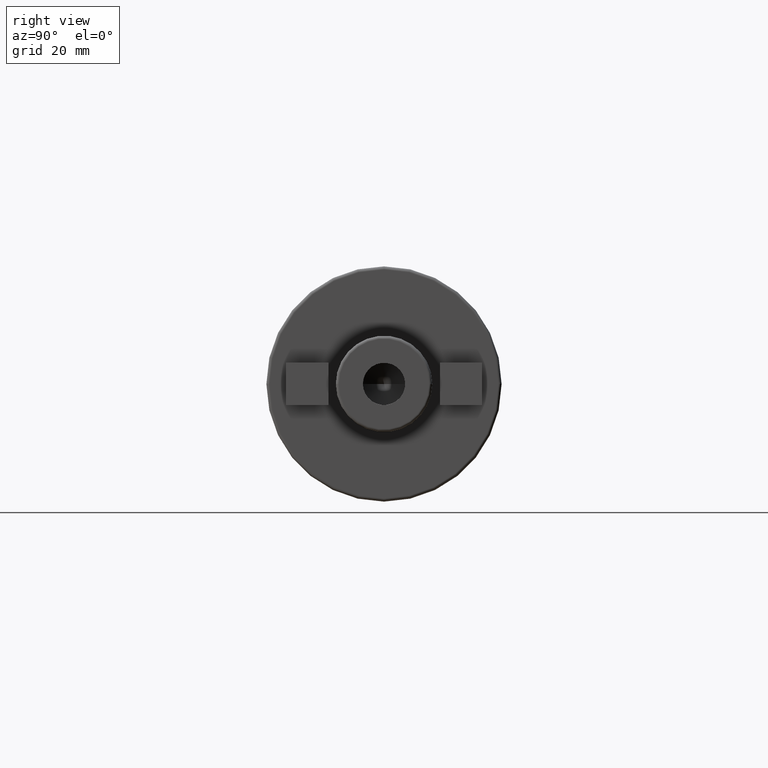
[diagram: clean part render]
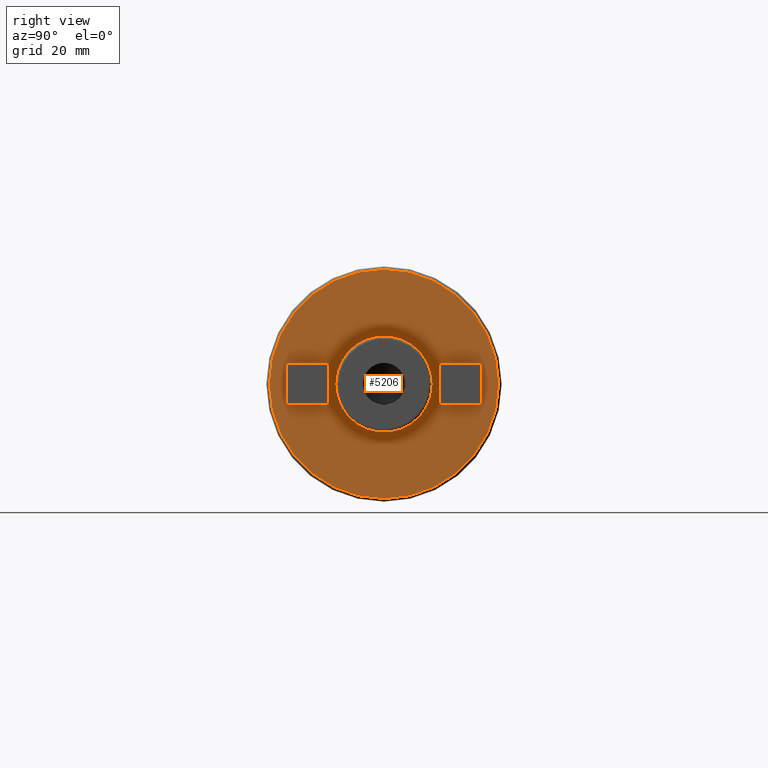
[diagram: same view with one face highlighted and labeled with its STEP entity id]
A machine part, right view. The second image highlights one B-rep face of the part: STEP entity #5206.
In plain terms, the highlighted planar face has unit normal (1, 0, 0).
Its self-contained STEP definition (entity closure, byte-faithful):
#1569=CARTESIAN_POINT('',(1.6E2,0.E0,0.E0));
#1570=DIRECTION('',(1.E0,0.E0,0.E0));
#1571=DIRECTION('',(0.E0,1.E0,0.E0));
#1572=AXIS2_PLACEMENT_3D('',#1569,#1570,#1571);
#1574=CARTESIAN_POINT('',(1.6E2,0.E0,0.E0));
#1575=DIRECTION('',(-1.E0,0.E0,0.E0));
#1576=DIRECTION('',(0.E0,1.E0,0.E0));
#1577=AXIS2_PLACEMENT_3D('',#1574,#1575,#1576);
#1579=CARTESIAN_POINT('',(1.6E2,0.E0,0.E0));
#1580=DIRECTION('',(-1.E0,0.E0,0.E0));
#1581=DIRECTION('',(0.E0,1.E0,0.E0));
#1582=AXIS2_PLACEMENT_3D('',#1579,#1580,#1581);
#1584=CARTESIAN_POINT('',(1.6E2,0.E0,0.E0));
#1585=DIRECTION('',(-1.E0,0.E0,0.E0));
#1586=DIRECTION('',(0.E0,-1.E0,0.E0));
#1587=AXIS2_PLACEMENT_3D('',#1584,#1585,#1586);
#1589=DIRECTION('',(0.E0,-1.E0,0.E0));
#1590=VECTOR('',#1589,1.4E1);
#1591=CARTESIAN_POINT('',(1.6E2,3.25E1,7.E0));
#1592=LINE('',#1591,#1590);
#1593=DIRECTION('',(0.E0,0.E0,-1.E0));
#1594=VECTOR('',#1593,1.4E1);
#1595=CARTESIAN_POINT('',(1.6E2,1.85E1,7.E0));
#1596=LINE('',#1595,#1594);
#1597=DIRECTION('',(0.E0,1.E0,0.E0));
#1598=VECTOR('',#1597,1.4E1);
#1599=CARTESIAN_POINT('',(1.6E2,1.85E1,-7.E0));
#1600=LINE('',#1599,#1598);
#1601=DIRECTION('',(0.E0,0.E0,1.E0));
#1602=VECTOR('',#1601,1.4E1);
#1603=CARTESIAN_POINT('',(1.6E2,3.25E1,-7.E0));
#1604=LINE('',#1603,#1602);
#1605=DIRECTION('',(0.E0,-1.E0,0.E0));
#1606=VECTOR('',#1605,1.4E1);
#1607=CARTESIAN_POINT('',(1.6E2,-1.85E1,7.E0));
#1608=LINE('',#1607,#1606);
#1609=DIRECTION('',(0.E0,0.E0,-1.E0));
#1610=VECTOR('',#1609,1.4E1);
#1611=CARTESIAN_POINT('',(1.6E2,-3.25E1,7.E0));
#1612=LINE('',#1611,#1610);
#1613=DIRECTION('',(0.E0,1.E0,0.E0));
#1614=VECTOR('',#1613,1.4E1);
#1615=CARTESIAN_POINT('',(1.6E2,-3.25E1,-7.E0));
#1616=LINE('',#1615,#1614);
#1617=DIRECTION('',(0.E0,0.E0,1.E0));
#1618=VECTOR('',#1617,1.4E1);
#1619=CARTESIAN_POINT('',(1.6E2,-1.85E1,-7.E0));
#1620=LINE('',#1619,#1618);
#3263=CARTESIAN_POINT('',(1.6E2,1.6E1,0.E0));
#3264=CARTESIAN_POINT('',(1.6E2,-1.6E1,0.E0));
#3265=VERTEX_POINT('',#3263);
#3266=VERTEX_POINT('',#3264);
#3271=CARTESIAN_POINT('',(1.6E2,3.8E1,0.E0));
#3272=CARTESIAN_POINT('',(1.6E2,-3.8E1,0.E0));
#3273=VERTEX_POINT('',#3271);
#3274=VERTEX_POINT('',#3272);
#3299=CARTESIAN_POINT('',(1.6E2,3.25E1,7.E0));
#3300=CARTESIAN_POINT('',(1.6E2,1.85E1,7.E0));
#3301=VERTEX_POINT('',#3299);
#3302=VERTEX_POINT('',#3300);
#3303=CARTESIAN_POINT('',(1.6E2,1.85E1,-7.E0));
#3304=VERTEX_POINT('',#3303);
#3305=CARTESIAN_POINT('',(1.6E2,3.25E1,-7.E0));
#3306=VERTEX_POINT('',#3305);
#3307=CARTESIAN_POINT('',(1.6E2,-1.85E1,7.E0));
#3308=CARTESIAN_POINT('',(1.6E2,-3.25E1,7.E0));
#3309=VERTEX_POINT('',#3307);
#3310=VERTEX_POINT('',#3308);
#3311=CARTESIAN_POINT('',(1.6E2,-3.25E1,-7.E0));
#3312=VERTEX_POINT('',#3311);
#3313=CARTESIAN_POINT('',(1.6E2,-1.85E1,-7.E0));
#3314=VERTEX_POINT('',#3313);
#5171=CARTESIAN_POINT('',(1.6E2,0.E0,0.E0));
#5172=DIRECTION('',(1.E0,0.E0,0.E0));
#5173=DIRECTION('',(0.E0,-1.E0,0.E0));
#5174=AXIS2_PLACEMENT_3D('',#5171,#5172,#5173);
#5175=PLANE('',#5174);
#5176=ORIENTED_EDGE('',*,*,#5165,.T.);
#5177=ORIENTED_EDGE('',*,*,#5151,.T.);
#5178=EDGE_LOOP('',(#5176,#5177));
#5179=FACE_OUTER_BOUND('',#5178,.F.);
#5181=ORIENTED_EDGE('',*,*,#5180,.T.);
#5183=ORIENTED_EDGE('',*,*,#5182,.F.);
#5184=EDGE_LOOP('',(#5181,#5183));
#5185=FACE_BOUND('',#5184,.F.);
#5187=ORIENTED_EDGE('',*,*,#5186,.T.);
#5189=ORIENTED_EDGE('',*,*,#5188,.T.);
#5191=ORIENTED_EDGE('',*,*,#5190,.T.);
#5193=ORIENTED_EDGE('',*,*,#5192,.T.);
#5194=EDGE_LOOP('',(#5187,#5189,#5191,#5193));
#5195=FACE_BOUND('',#5194,.F.);
#5197=ORIENTED_EDGE('',*,*,#5196,.T.);
#5199=ORIENTED_EDGE('',*,*,#5198,.T.);
#5201=ORIENTED_EDGE('',*,*,#5200,.T.);
#5203=ORIENTED_EDGE('',*,*,#5202,.T.);
#5204=EDGE_LOOP('',(#5197,#5199,#5201,#5203));
#5205=FACE_BOUND('',#5204,.F.);
#5206=ADVANCED_FACE('',(#5179,#5185,#5195,#5205),#5175,.T.);
#1573=CIRCLE('',#1572,1.6E1);
#1578=CIRCLE('',#1577,1.6E1);
#1583=CIRCLE('',#1582,3.8E1);
#1588=CIRCLE('',#1587,3.8E1);
#5151=EDGE_CURVE('',#3274,#3273,#1588,.T.);
#5165=EDGE_CURVE('',#3273,#3274,#1583,.T.);
#5180=EDGE_CURVE('',#3265,#3266,#1573,.T.);
#5182=EDGE_CURVE('',#3265,#3266,#1578,.T.);
#5186=EDGE_CURVE('',#3301,#3302,#1592,.T.);
#5188=EDGE_CURVE('',#3302,#3304,#1596,.T.);
#5190=EDGE_CURVE('',#3304,#3306,#1600,.T.);
#5192=EDGE_CURVE('',#3306,#3301,#1604,.T.);
#5196=EDGE_CURVE('',#3309,#3310,#1608,.T.);
#5198=EDGE_CURVE('',#3310,#3312,#1612,.T.);
#5200=EDGE_CURVE('',#3312,#3314,#1616,.T.);
#5202=EDGE_CURVE('',#3314,#3309,#1620,.T.);